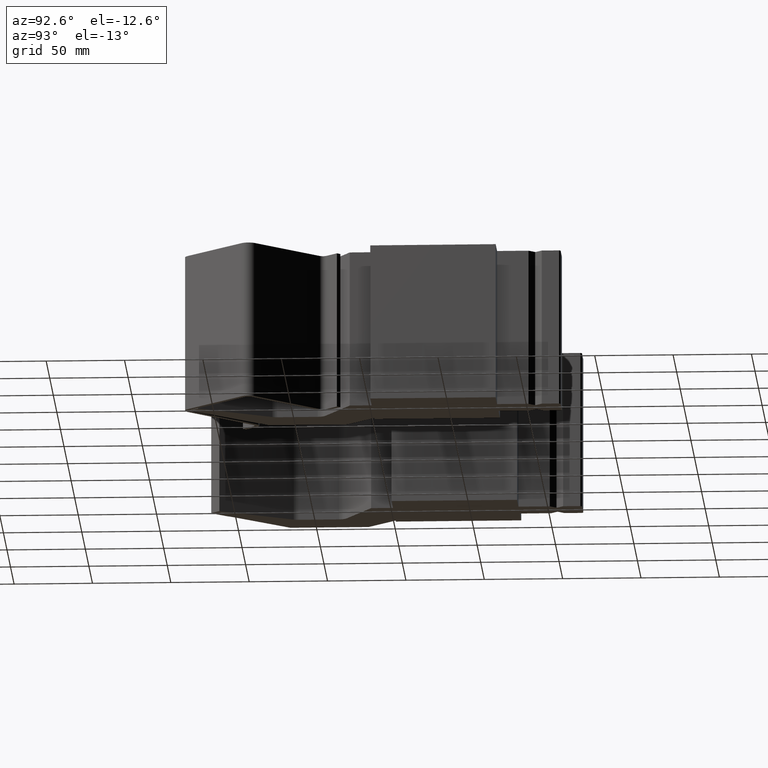
[diagram: clean part render]
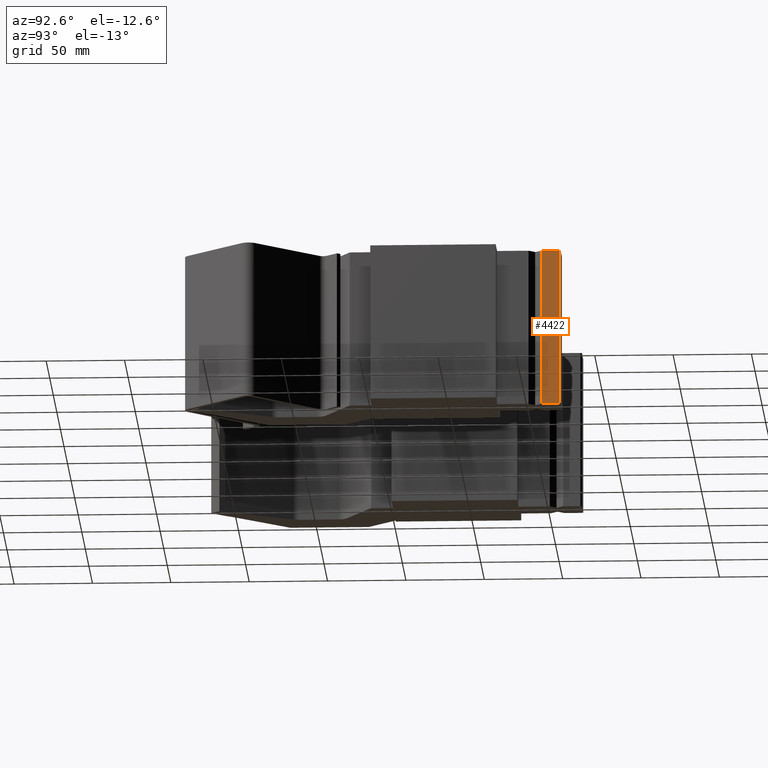
[diagram: same view with one face highlighted and labeled with its STEP entity id]
A machine part, auxiliary view. The second image highlights one B-rep face of the part: STEP entity #4422.
In plain terms, the highlighted face is a SurfaceOfExtrusion surface.
Its self-contained STEP definition (entity closure, byte-faithful):
#102=CARTESIAN_POINT('',(-1.999998507530E1,1.084999879354E2,0.E0));
#107=CARTESIAN_POINT('',(-1.999998507530E1,1.084999879354E2,0.E0));
#108=CARTESIAN_POINT('',(-1.999998507530E1,1.121666533013E2,0.E0));
#109=CARTESIAN_POINT('',(-1.999998507530E1,1.158333186672E2,0.E0));
#110=CARTESIAN_POINT('',(-1.999998507530E1,1.194999840332E2,0.E0));
#520=DIRECTION('',(0.E0,0.E0,1.E0));
#521=VECTOR('',#520,1.E2);
#522=CARTESIAN_POINT('',(-1.999998507530E1,1.194999840332E2,0.E0));
#523=LINE('',#522,#521);
#527=DIRECTION('',(0.E0,0.E0,1.E0));
#528=VECTOR('',#527,1.E2);
#529=CARTESIAN_POINT('',(-1.999998507530E1,1.084999879354E2,0.E0));
#530=LINE('',#529,#528);
#779=CARTESIAN_POINT('',(-1.999998507530E1,1.084999879354E2,1.E2));
#780=CARTESIAN_POINT('',(-1.999998507530E1,1.121666533013E2,1.E2));
#781=CARTESIAN_POINT('',(-1.999998507530E1,1.158333186672E2,1.E2));
#782=CARTESIAN_POINT('',(-1.999998507530E1,1.194999840332E2,1.E2));
#790=CARTESIAN_POINT('',(-1.999998507530E1,1.084999879354E2,1.E2));
#2974=VERTEX_POINT('',#102);
#2975=VERTEX_POINT('',#110);
#3006=VERTEX_POINT('',#790);
#3007=VERTEX_POINT('',#782);
#4400=CARTESIAN_POINT('',(-1.999998507530E1,1.082799880134E2,0.E0));
#4401=CARTESIAN_POINT('',(-1.999998507530E1,1.083533213207E2,0.E0));
#4402=CARTESIAN_POINT('',(-1.999998507530E1,1.089995710915E2,0.E0));
#4403=CARTESIAN_POINT('',(-1.999998507530E1,1.127395697647E2,0.E0));
#4404=CARTESIAN_POINT('',(-1.999998507530E1,1.164795684380E2,0.E0));
#4405=CARTESIAN_POINT('',(-1.999998507530E1,1.196466506478E2,0.E0));
#4406=CARTESIAN_POINT('',(-1.999998507530E1,1.197199839551E2,0.E0));
#4411=DIRECTION('',(0.E0,0.E0,1.E0));
#4412=VECTOR('',#4411,1.E0);
#4413=SURFACE_OF_LINEAR_EXTRUSION('',#4407,#4412);
#4414=ORIENTED_EDGE('',*,*,#3351,.F.);
#4416=ORIENTED_EDGE('',*,*,#4415,.T.);
#4418=ORIENTED_EDGE('',*,*,#4417,.T.);
#4419=ORIENTED_EDGE('',*,*,#4380,.F.);
#4420=EDGE_LOOP('',(#4414,#4416,#4418,#4419));
#4421=FACE_OUTER_BOUND('',#4420,.F.);
#4422=ADVANCED_FACE('',(#4421),#4413,.T.);
#111=B_SPLINE_CURVE_WITH_KNOTS('',3,(#107,#108,#109,#110),.UNSPECIFIED.,.F.,.F.,
(4,4),(0.E0,1.E0),.UNSPECIFIED.);
#783=B_SPLINE_CURVE_WITH_KNOTS('',3,(#779,#780,#781,#782),.UNSPECIFIED.,.F.,.F.,
(4,4),(0.E0,1.E0),.UNSPECIFIED.);
#3351=EDGE_CURVE('',#2974,#2975,#111,.T.);
#4380=EDGE_CURVE('',#2975,#3007,#523,.T.);
#4407=B_SPLINE_CURVE_WITH_KNOTS('',3,(#4400,#4401,#4402,#4403,#4404,#4405,
#4406),.UNSPECIFIED.,.F.,.F.,(4,1,1,1,4),(0.E0,1.923076923077E-2,
1.694711538462E-1,9.807692307692E-1,1.E0),.UNSPECIFIED.);
#4415=EDGE_CURVE('',#2974,#3006,#530,.T.);
#4417=EDGE_CURVE('',#3006,#3007,#783,.T.);